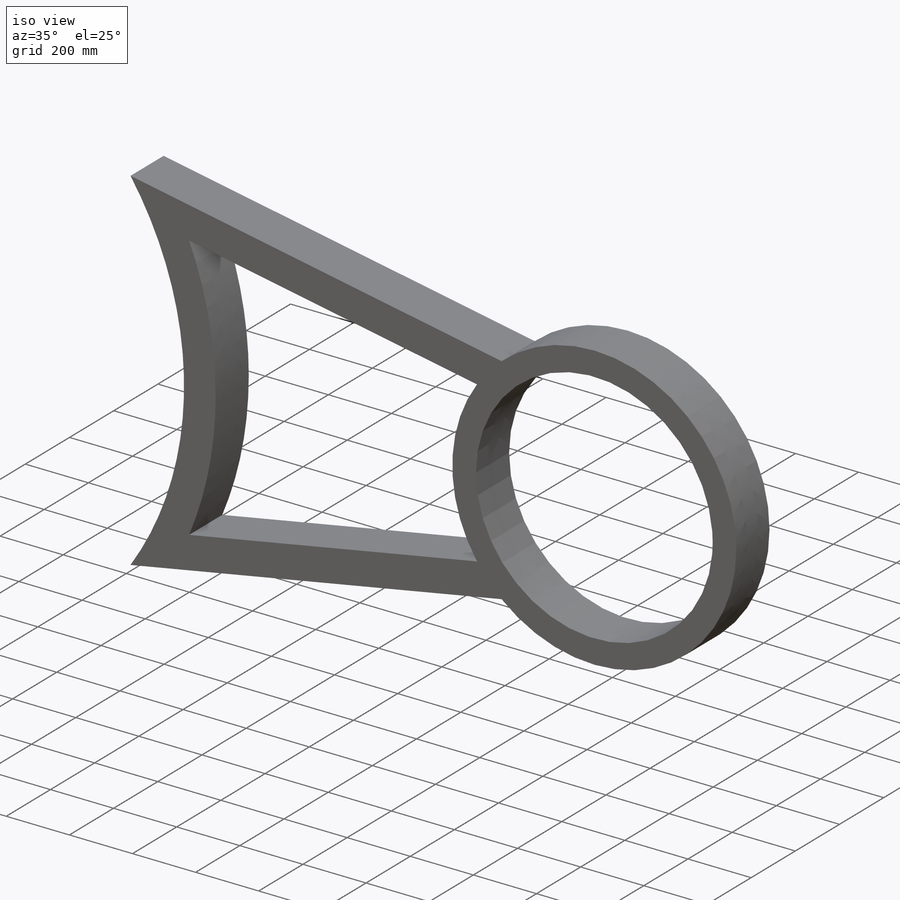
[diagram: iso view]
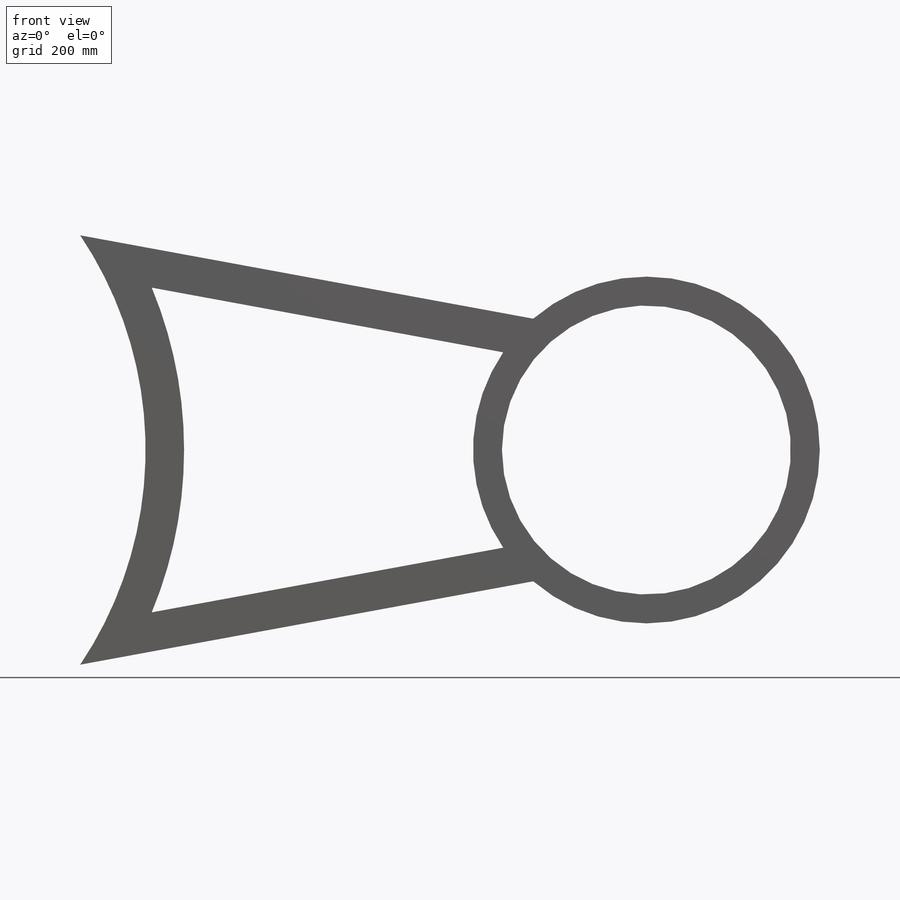
[diagram: front view]
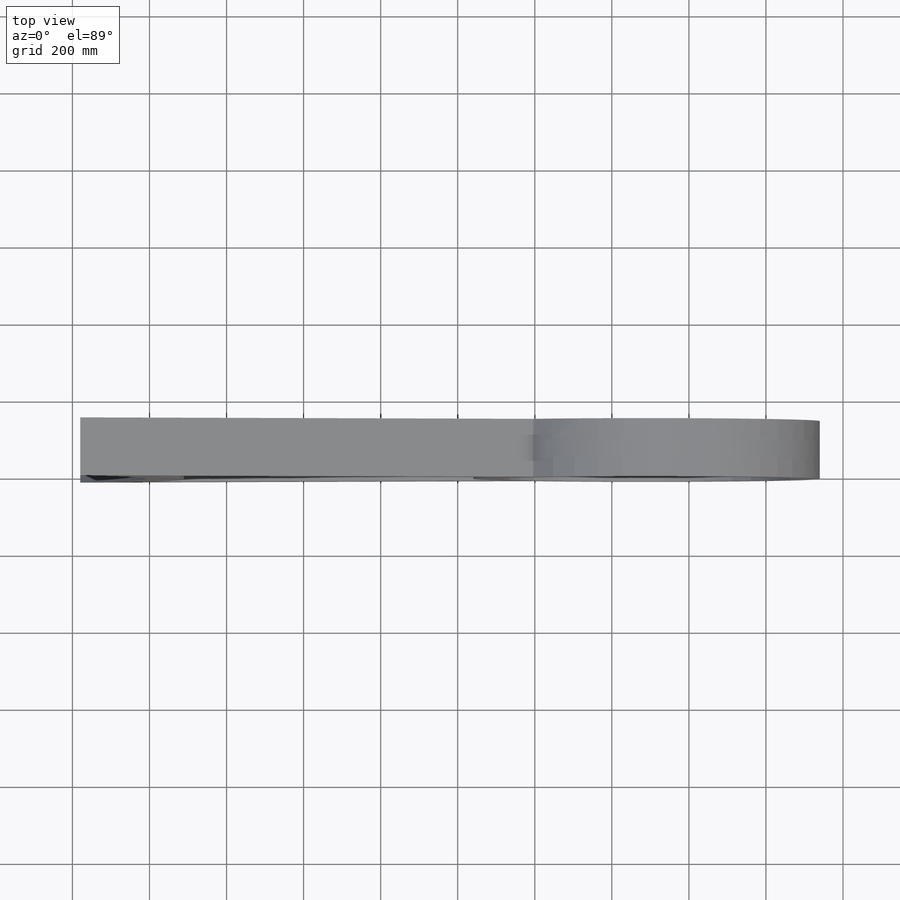
[diagram: top view]
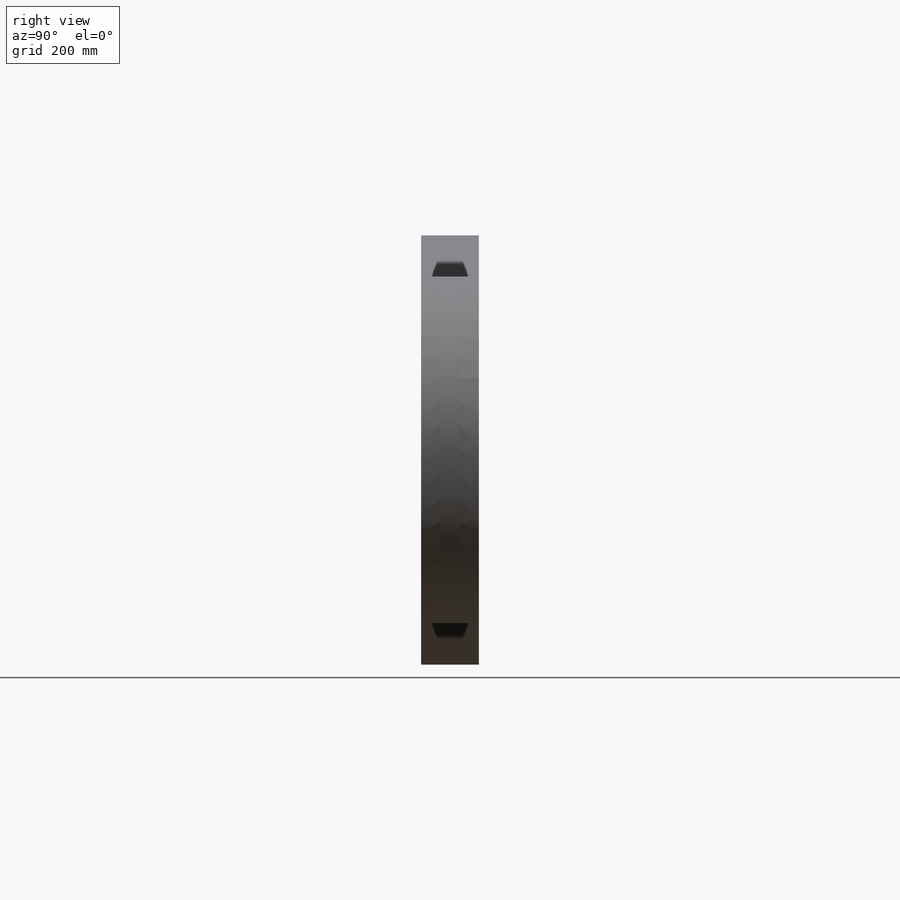
[diagram: right view]
SOLIDWORKS PART (.sldprt)
format: sldprt  version: not decoded by parser v0  size: 161,792 bytes
history: native  units: mm
features: sketch x3, plane x2, extrude x2, material x1 (+16 scaffold rows collapsed)
feature tree (24):
  scaffold x16  (default folders/planes/origin — collapsed)
  material  "Material <not specified>"
  plane  "Plane1"  Offset=7500mm
  sketch  "Sketch2"  dims[c1.D3=750.0mm c1.D4=450.0mm c1.D1=100.0mm c1.D5=2300.0mm c2.D1=100.0mm c2.D2=100.0mm]
  extrude  "Extrude1"  Depth=150mm
  plane  "Plane2"
  sketch  "Sketch4"  dims[c1.D1=~1175.822567mm c2.D1=30.0deg]
  sketch  "Sketch3"  dims[D1=100.0mm D2=100.0mm]
  extrude  "Extrude2"  Depth=1000mm
decode coverage: 5 of 5 modeling features carry decoded parameters
note: ~ marks probable driven/reference dimensions
note: suppression state not decoded; provenance and decode notes live in map.json
